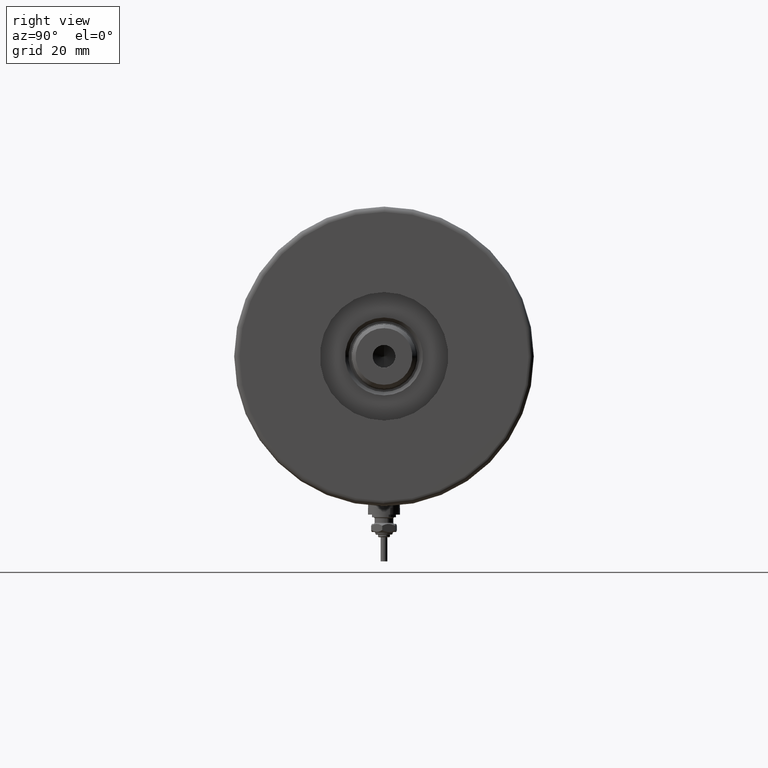
[diagram: clean part render]
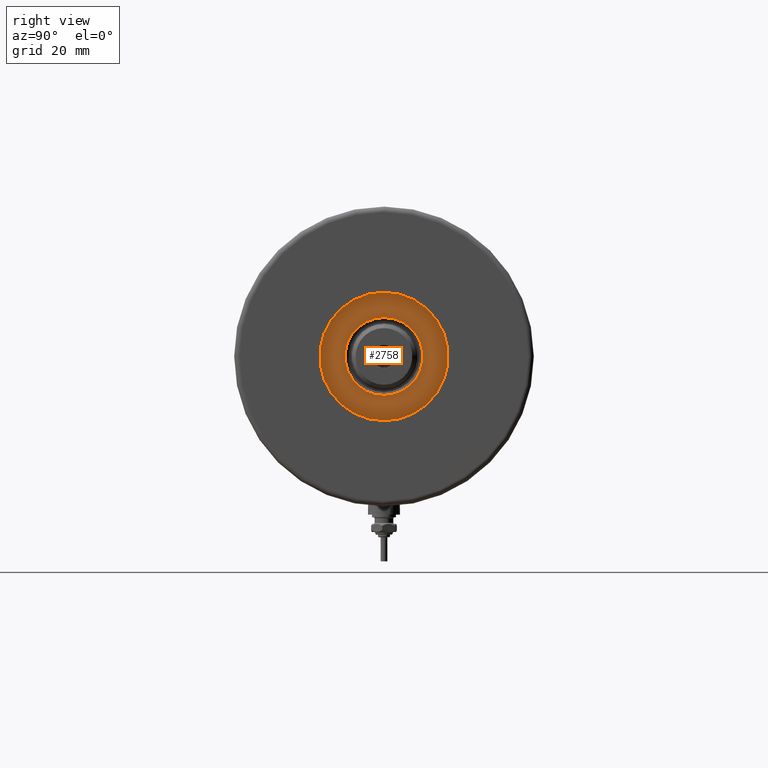
[diagram: same view with one face highlighted and labeled with its STEP entity id]
A machine part, right view. The second image highlights one B-rep face of the part: STEP entity #2758.
In plain terms, the highlighted planar face has unit normal (1, 0, -0).
Its self-contained STEP definition (entity closure, byte-faithful):
#351 = AXIS2_PLACEMENT_3D ( 'NONE', #6192, #1849, #5292 ) ;
#631 = VERTEX_POINT ( 'NONE', #4945 ) ;
#706 = CARTESIAN_POINT ( 'NONE',  ( 24.00000000000000355, 2.939152317953648289E-15, 41.00000000000000000 ) ) ;
#991 = DIRECTION ( 'NONE',  ( 0.000000000000000000, 0.000000000000000000, 1.000000000000000000 ) ) ;
#1153 = EDGE_LOOP ( 'NONE', ( #2171, #4991 ) ) ;
#1171 = DIRECTION ( 'NONE',  ( 1.000000000000000000, 0.000000000000000000, -0.000000000000000000 ) ) ;
#1194 = DIRECTION ( 'NONE',  ( 1.000000000000000000, 0.000000000000000000, 0.000000000000000000 ) ) ;
#1399 = DIRECTION ( 'NONE',  ( 1.000000000000000000, 0.000000000000000000, 0.000000000000000000 ) ) ;
#1624 = FACE_BOUND ( 'NONE', #1153, .T. ) ;
#1669 = CARTESIAN_POINT ( 'NONE',  ( 0.000000000000000000, 0.000000000000000000, 41.00000000000000000 ) ) ;
#1849 = DIRECTION ( 'NONE',  ( -0.000000000000000000, -0.000000000000000000, -1.000000000000000000 ) ) ;
#2082 = CIRCLE ( 'NONE', #4432, 24.00000000000000355 ) ;
#2171 = ORIENTED_EDGE ( 'NONE', *, *, #3263, .T. ) ;
#2397 = AXIS2_PLACEMENT_3D ( 'NONE', #4783, #991, #1399 ) ;
#2402 = AXIS2_PLACEMENT_3D ( 'NONE', #2760, #4712, #5696 ) ;
#2566 = FACE_OUTER_BOUND ( 'NONE', #2590, .T. ) ;
#2590 = EDGE_LOOP ( 'NONE', ( #2804, #3912 ) ) ;
#2610 = VERTEX_POINT ( 'NONE', #706 ) ;
#2679 = EDGE_CURVE ( 'NONE', #631, #2610, #3114, .T. ) ;
#2758 = ADVANCED_FACE ( 'NONE', ( #1624, #2566 ), #3550, .T. ) ;
#2760 = CARTESIAN_POINT ( 'NONE',  ( 0.000000000000000000, 0.000000000000000000, 41.00000000000000000 ) ) ;
#2804 = ORIENTED_EDGE ( 'NONE', *, *, #2679, .T. ) ;
#3070 = EDGE_CURVE ( 'NONE', #2610, #631, #2082, .T. ) ;
#3114 = CIRCLE ( 'NONE', #2397, 24.00000000000000355 ) ;
#3263 = EDGE_CURVE ( 'NONE', #5266, #5823, #5851, .T. ) ;
#3550 = PLANE ( 'NONE',  #5157 ) ;
#3887 = CARTESIAN_POINT ( 'NONE',  ( -14.54999999999997939, 1.781861092759396721E-15, 41.00000000000000000 ) ) ;
#3912 = ORIENTED_EDGE ( 'NONE', *, *, #3070, .T. ) ;
#4043 = CIRCLE ( 'NONE', #2402, 14.54999999999997939 ) ;
#4432 = AXIS2_PLACEMENT_3D ( 'NONE', #1669, #5562, #1194 ) ;
#4712 = DIRECTION ( 'NONE',  ( -0.000000000000000000, -0.000000000000000000, -1.000000000000000000 ) ) ;
#4783 = CARTESIAN_POINT ( 'NONE',  ( 0.000000000000000000, 0.000000000000000000, 41.00000000000000000 ) ) ;
#4792 = EDGE_CURVE ( 'NONE', #5823, #5266, #4043, .T. ) ;
#4945 = CARTESIAN_POINT ( 'NONE',  ( -24.00000000000000355, 0.000000000000000000, 41.00000000000000000 ) ) ;
#4991 = ORIENTED_EDGE ( 'NONE', *, *, #4792, .T. ) ;
#4992 = CARTESIAN_POINT ( 'NONE',  ( 0.000000000000000000, 0.000000000000000000, 41.00000000000000000 ) ) ;
#5157 = AXIS2_PLACEMENT_3D ( 'NONE', #4992, #5938, #1171 ) ;
#5266 = VERTEX_POINT ( 'NONE', #5654 ) ;
#5292 = DIRECTION ( 'NONE',  ( 1.000000000000000000, 0.000000000000000000, 0.000000000000000000 ) ) ;
#5562 = DIRECTION ( 'NONE',  ( 0.000000000000000000, 0.000000000000000000, 1.000000000000000000 ) ) ;
#5654 = CARTESIAN_POINT ( 'NONE',  ( 14.54999999999997939, 0.000000000000000000, 41.00000000000000000 ) ) ;
#5696 = DIRECTION ( 'NONE',  ( 1.000000000000000000, 0.000000000000000000, 0.000000000000000000 ) ) ;
#5823 = VERTEX_POINT ( 'NONE', #3887 ) ;
#5851 = CIRCLE ( 'NONE', #351, 14.54999999999997939 ) ;
#5938 = DIRECTION ( 'NONE',  ( 0.000000000000000000, 0.000000000000000000, 1.000000000000000000 ) ) ;
#6192 = CARTESIAN_POINT ( 'NONE',  ( 0.000000000000000000, 0.000000000000000000, 41.00000000000000000 ) ) ;